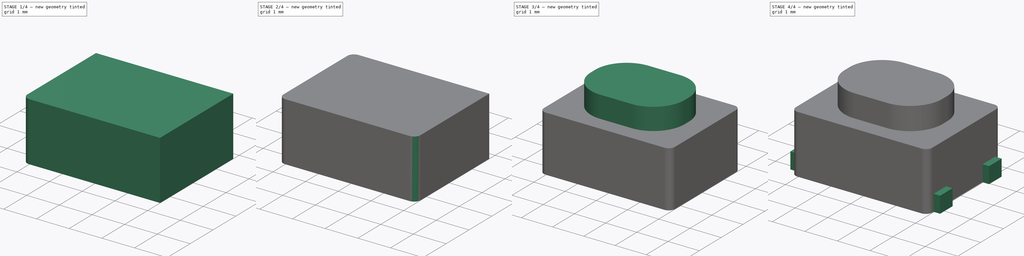
[diagram: build sequence overview — one tinted view per stage of 4, left to right]
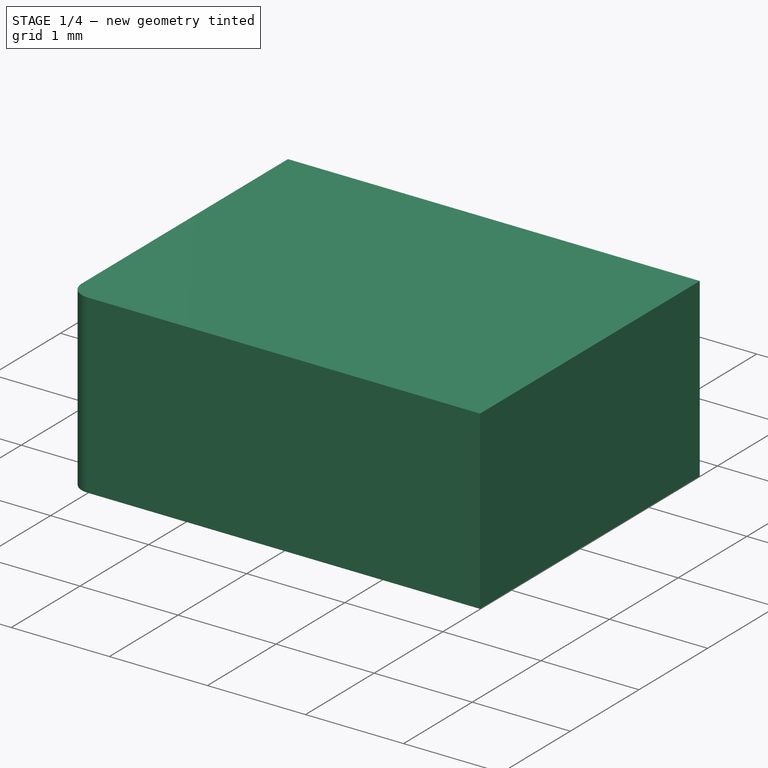
[diagram: stage 1 of 4 — iso view after this stage's code; geometry added in this stage tinted green]
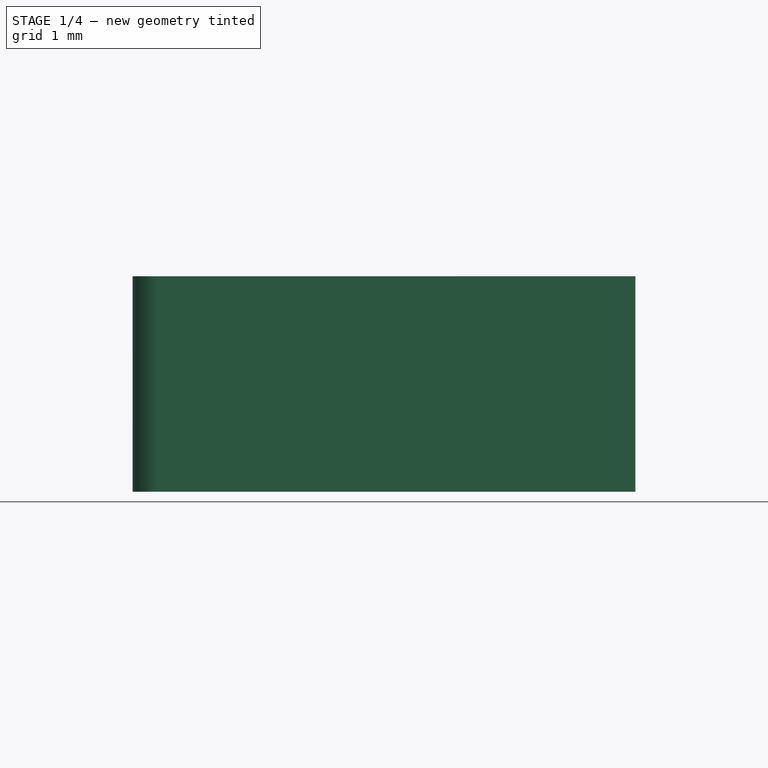
[diagram: stage 1 of 4 — front view after this stage's code; geometry added in this stage tinted green]
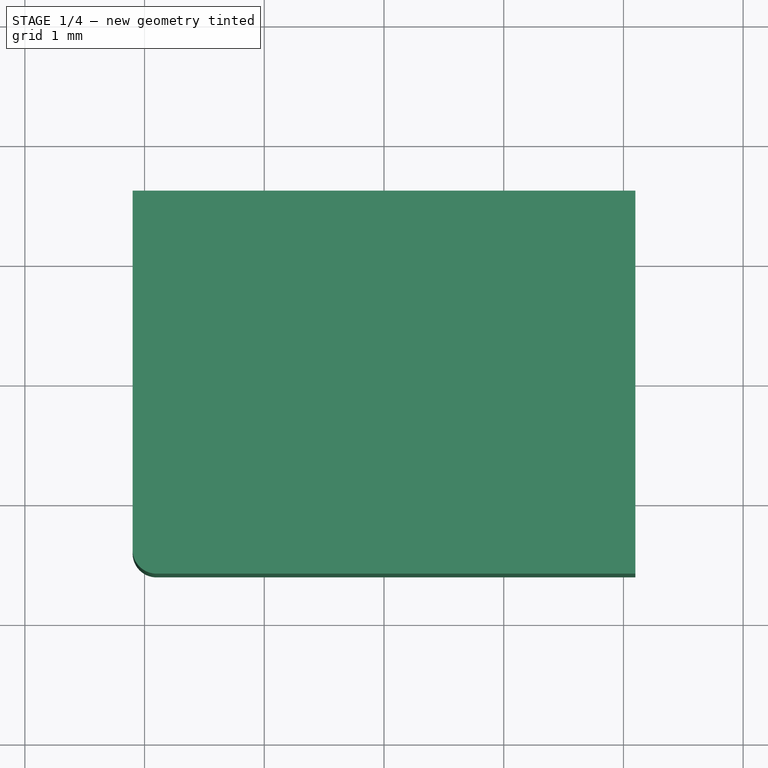
[diagram: stage 1 of 4 — top view after this stage's code; geometry added in this stage tinted green]
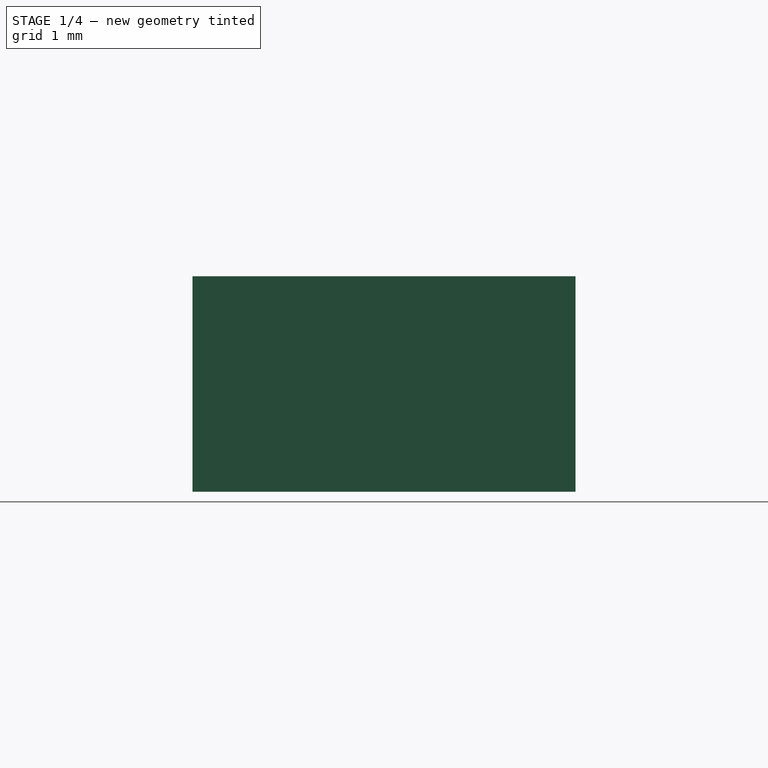
[diagram: stage 1 of 4 — right view after this stage's code; geometry added in this stage tinted green]
FCSTD DOCUMENT  (FreeCAD 0.17R13541 (Git))
Label: Empreinte_Switch
License: All rights reserved
LicenseURL: http://en.wikipedia.org/wiki/All_rights_reserved
objects: PartDesign::Fillet×5, Sketcher::SketchObject×3, PartDesign::Pad×3, PartDesign::Mirrored×2, PartDesign::MultiTransform×1, PartDesign::Body×1
note: 18 computed .brp shape members not serialized (recipe doc carries the construction recipe); baked Part::Feature solids carry a one-line shape summary decoded from their .brp

FEATURE [Sketcher::SketchObject] Sketch
  MapMode = 5
  Support = -> [XY_Plane]
  sketch-geometry (4):
    g0: LineSegment StartX=-2.1 StartY=1.6 StartZ=0 EndX=2.1 EndY=1.6 EndZ=0
    g1: LineSegment StartX=2.1 StartY=1.6 StartZ=0 EndX=2.1 EndY=-1.6 EndZ=0
    g2: LineSegment StartX=2.1 StartY=-1.6 StartZ=0 EndX=-2.1 EndY=-1.6 EndZ=0
    g3: LineSegment StartX=-2.1 StartY=-1.6 StartZ=0 EndX=-2.1 EndY=1.6 EndZ=0
  constraints (12):
    c: Coincident(g0,g1)
    c: Coincident(g1,g2)
    c: Coincident(g2,g3)
    c: Coincident(g3,g0)
    c: Horizontal(g0)
    c: Horizontal(g2)
    c: Vertical(g1)
    c: Vertical(g3)
    c: Distance(g0) = 4.2
    c: Distance(g1) = 3.2
    c: Distance(g-1,g1) = 2.1
    c: Distance(g-1,g2) = 1.6
FEATURE [PartDesign::Pad] Pad  label="CorpsBouton"
  Length = 1.8
  Length2 = 100
  Profile = -> Sketch
  Type = 0
FEATURE [PartDesign::Fillet] Fillet
  Base = -> Pad [Edge8]
  BaseFeature = -> Pad
  Radius = 0.2
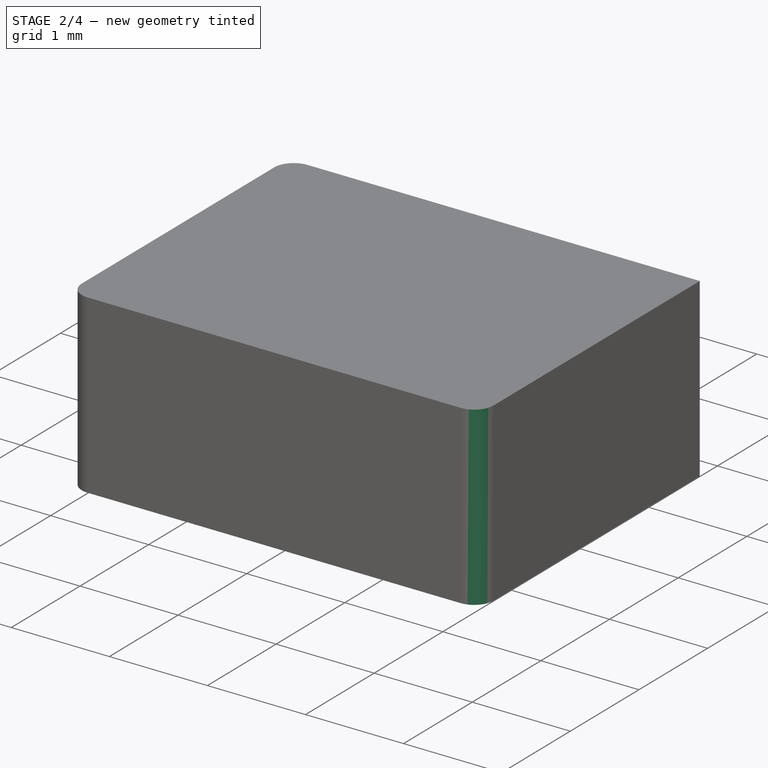
[diagram: stage 2 of 4 — iso view after this stage's code; geometry added in this stage tinted green]
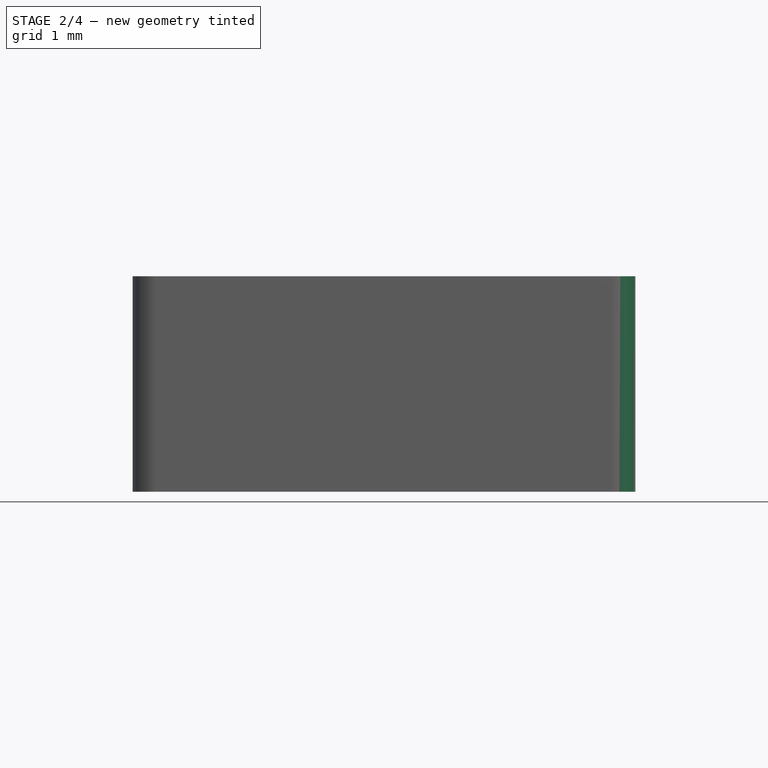
[diagram: stage 2 of 4 — front view after this stage's code; geometry added in this stage tinted green]
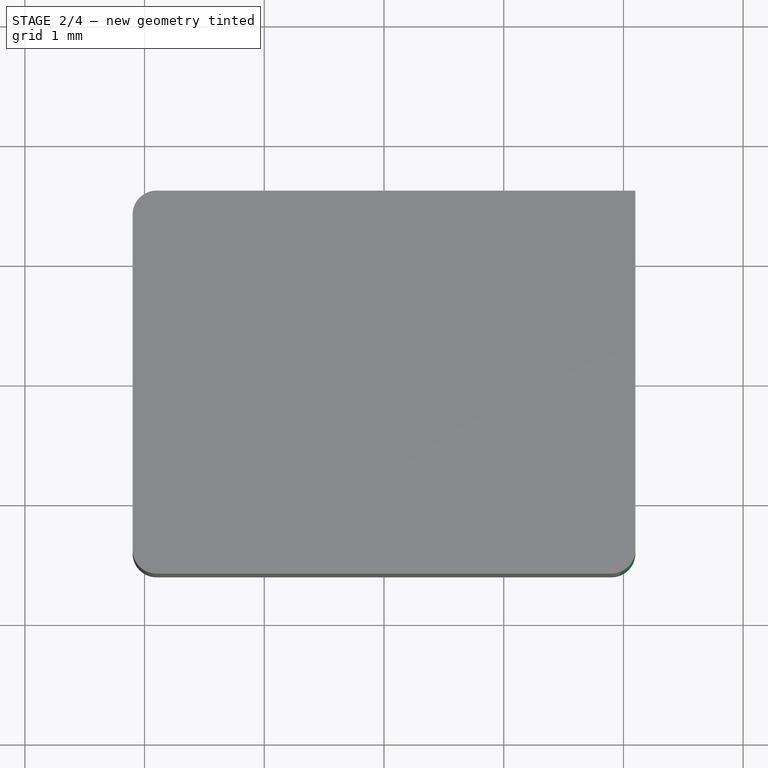
[diagram: stage 2 of 4 — top view after this stage's code; geometry added in this stage tinted green]
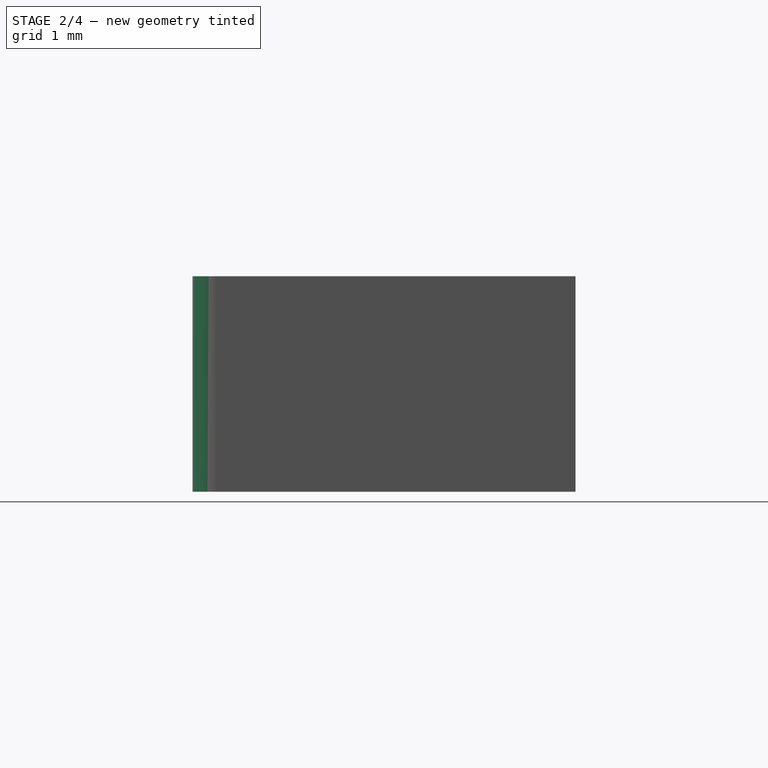
[diagram: stage 2 of 4 — right view after this stage's code; geometry added in this stage tinted green]
FEATURE [PartDesign::Fillet] Fillet001
  Base = -> Fillet [Edge3]
  BaseFeature = -> Fillet
  Radius = 0.2
FEATURE [PartDesign::Fillet] Fillet002
  Base = -> Fillet001 [Edge18]
  BaseFeature = -> Fillet001
  Radius = 0.2
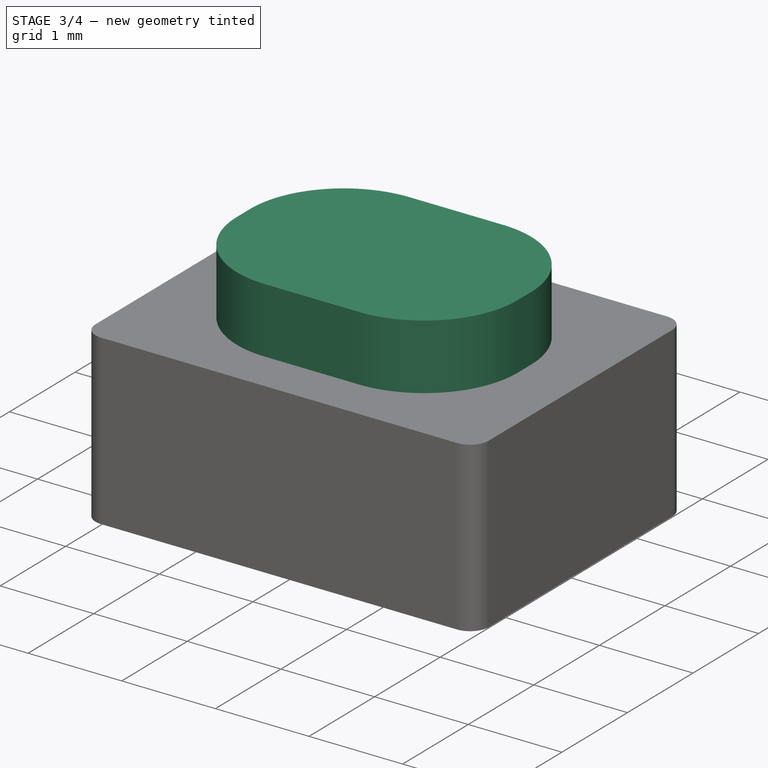
[diagram: stage 3 of 4 — iso view after this stage's code; geometry added in this stage tinted green]
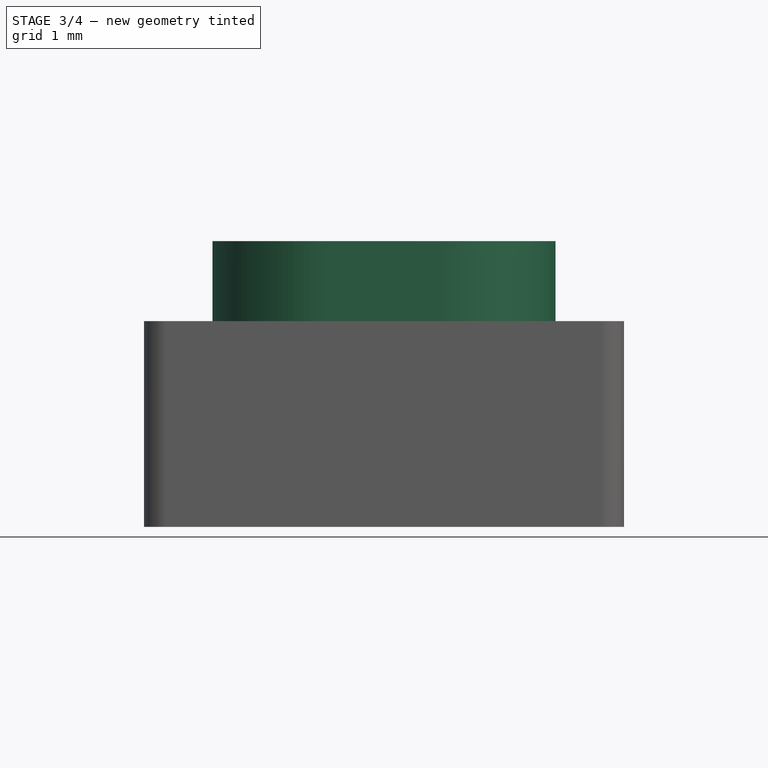
[diagram: stage 3 of 4 — front view after this stage's code; geometry added in this stage tinted green]
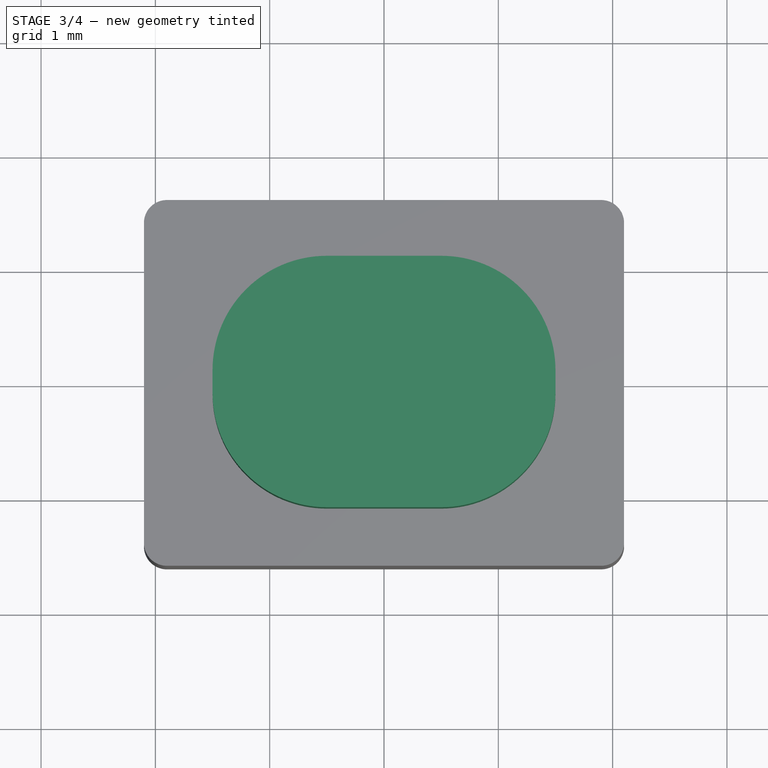
[diagram: stage 3 of 4 — top view after this stage's code; geometry added in this stage tinted green]
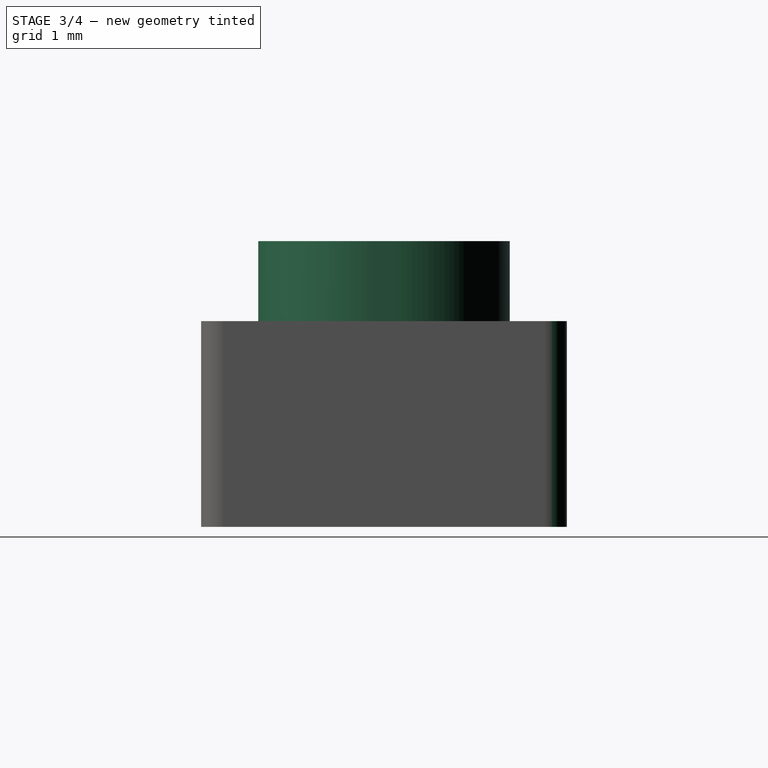
[diagram: stage 3 of 4 — right view after this stage's code; geometry added in this stage tinted green]
FEATURE [PartDesign::Fillet] Fillet003
  Base = -> Fillet002 [Edge15]
  BaseFeature = -> Fillet002
  Radius = 0.2
FEATURE [Sketcher::SketchObject] Sketch001
  MapMode = 5
  Placement = pos=(0,0,1.8) rot=(0,0,1;0rad)
  Support = -> [Pad]
  sketch-geometry (4):
    g0: LineSegment StartX=-1.5 StartY=1.1 StartZ=0 EndX=1.5 EndY=1.1 EndZ=0
    g1: LineSegment StartX=1.5 StartY=1.1 StartZ=0 EndX=1.5 EndY=-1.1 EndZ=0
    g2: LineSegment StartX=1.5 StartY=-1.1 StartZ=0 EndX=-1.5 EndY=-1.1 EndZ=0
    g3: LineSegment StartX=-1.5 StartY=-1.1 StartZ=0 EndX=-1.5 EndY=1.1 EndZ=0
  constraints (12):
    c: Coincident(g0,g1)
    c: Coincident(g1,g2)
    c: Coincident(g2,g3)
    c: Coincident(g3,g0)
    c: Horizontal(g0)
    c: Horizontal(g2)
    c: Vertical(g1)
    c: Vertical(g3)
    c: Distance(g0) = 3
    c: Distance(g-1,g1) = 1.5
    c: Distance(g3) = 2.2
    c: Distance(g-1,g2) = 1.1
FEATURE [PartDesign::Pad] Pad001  label="Bouton"
  BaseFeature = -> Fillet003
  Length = 0.7
  Length2 = 100
  Profile = -> Sketch001
  Type = 0
FEATURE [PartDesign::Fillet] Fillet004
  Base = -> Pad001 [Edge33,Edge35,Edge29,Edge31]
  BaseFeature = -> Pad001
  Radius = 1
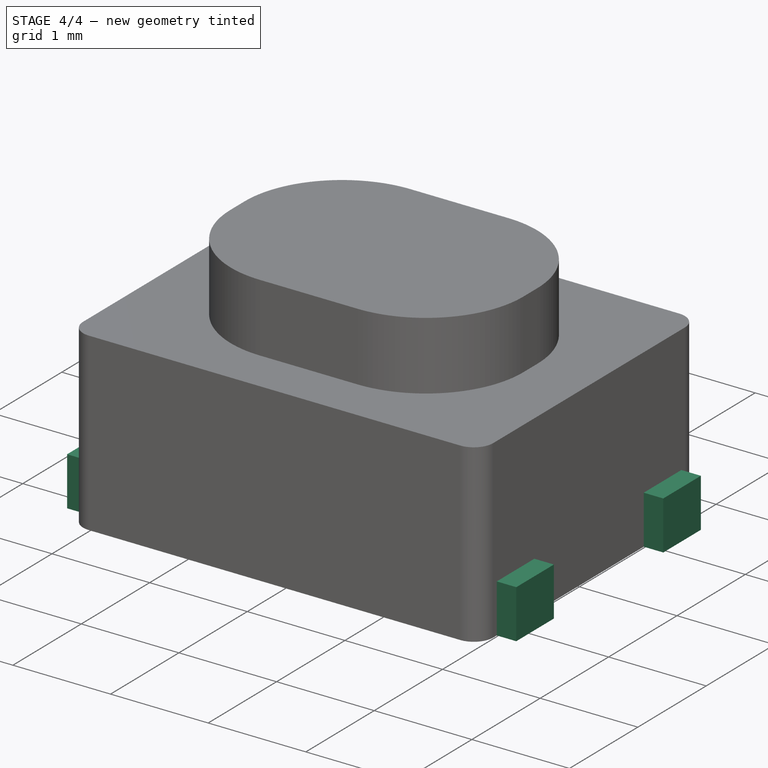
[diagram: stage 4 of 4 — iso view after this stage's code; geometry added in this stage tinted green]
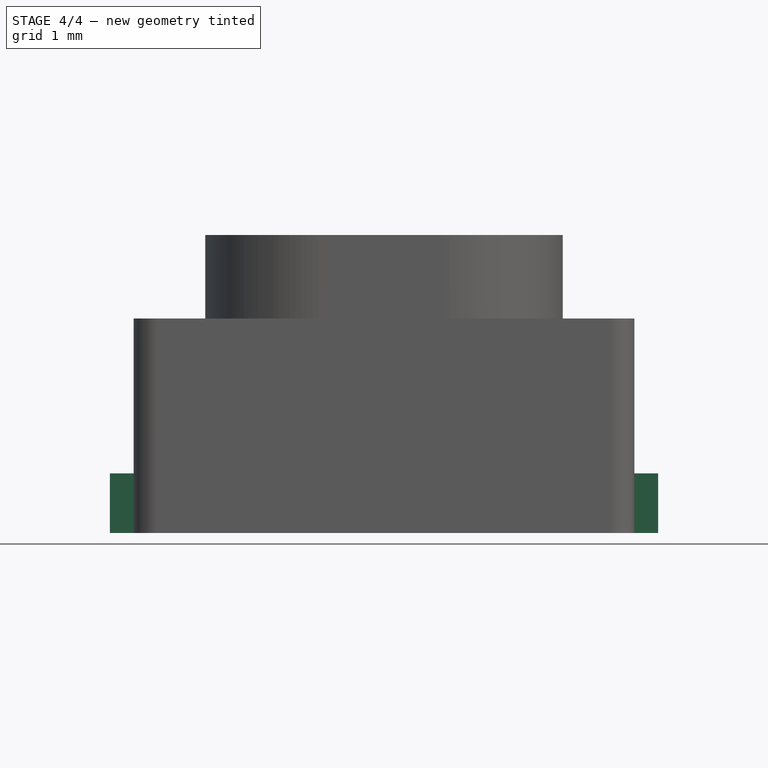
[diagram: stage 4 of 4 — front view after this stage's code; geometry added in this stage tinted green]
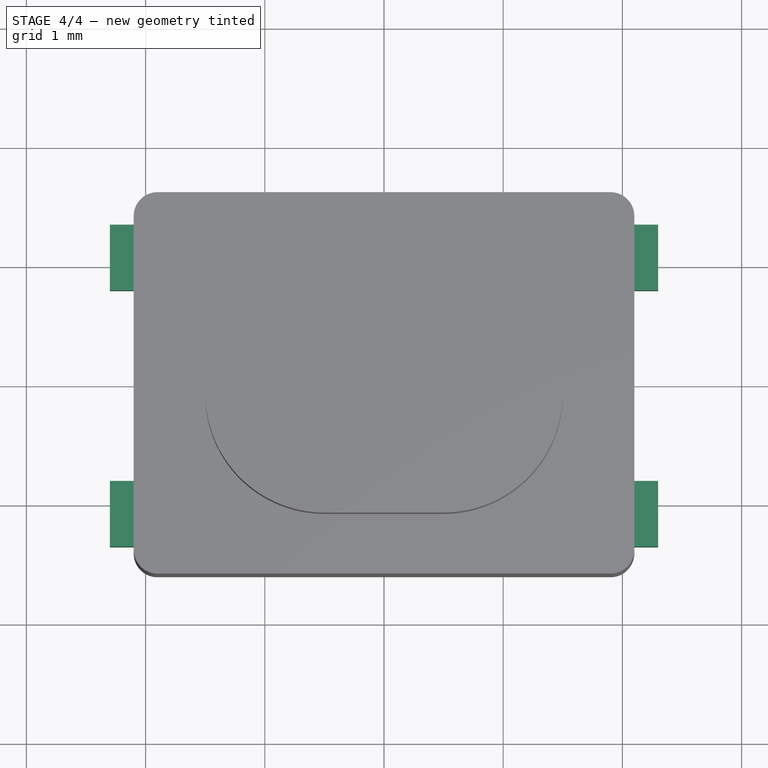
[diagram: stage 4 of 4 — top view after this stage's code; geometry added in this stage tinted green]
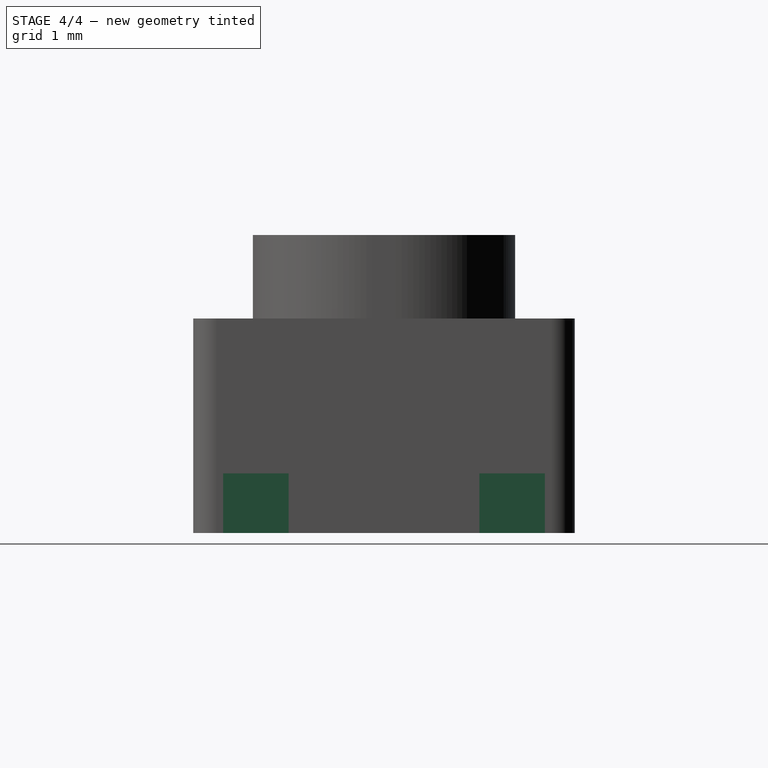
[diagram: stage 4 of 4 — right view after this stage's code; geometry added in this stage tinted green]
FEATURE [Sketcher::SketchObject] Sketch002
  MapMode = 5
  Placement = pos=(-2.1,0,0) rot=(0.57735,-0.57735,-0.57735;2.0944rad)
  Support = -> [Fillet004]
  sketch-geometry (4):
    g0: LineSegment StartX=-0.8 StartY=0 StartZ=0 EndX=-1.35 EndY=0 EndZ=0
    g1: LineSegment StartX=-1.35 StartY=0 StartZ=0 EndX=-1.35 EndY=0.5 EndZ=0
    g2: LineSegment StartX=-1.35 StartY=0.5 StartZ=0 EndX=-0.8 EndY=0.5 EndZ=0
    g3: LineSegment StartX=-0.8 StartY=0.5 StartZ=0 EndX=-0.8 EndY=0 EndZ=0
  constraints (12):
    c: Coincident(g0,g1)
    c: Coincident(g1,g2)
    c: Coincident(g2,g3)
    c: Coincident(g3,g0)
    c: Horizontal(g0)
    c: Horizontal(g2)
    c: Vertical(g1)
    c: Vertical(g3)
    c: PointOnObject(g0,g-1)
    c: Distance(g2) = 0.55
    c: Distance(g3) = 0.5
    c: Distance(g-1,g3) = 0.8
FEATURE [PartDesign::Pad] Pad002  label="PatteComposant"
  BaseFeature = -> Fillet004
  Length = 0.2
  Length2 = 100
  Profile = -> Sketch002
  Type = 0
FEATURE [PartDesign::Mirrored] Mirrored
  MirrorPlane = -> Sketch002 [V_Axis]
FEATURE [PartDesign::Mirrored] Mirrored001
  MirrorPlane = -> YZ_Plane
FEATURE [PartDesign::MultiTransform] MultiTransform
  BaseFeature = -> Pad002
  Originals = -> [Pad002]
  Transformations = -> [Mirrored,Mirrored001]
FEATURE [PartDesign::Body] Body
  Group = -> [Sketch,Pad,Fillet,Fillet001,Fillet002,Fillet003,Sketch001,Pad001,Fillet004,Sketch002,Pad002,MultiTransform,Mirrored,Mirrored001]
  Origin = -> Origin
  Tip = -> MultiTransform
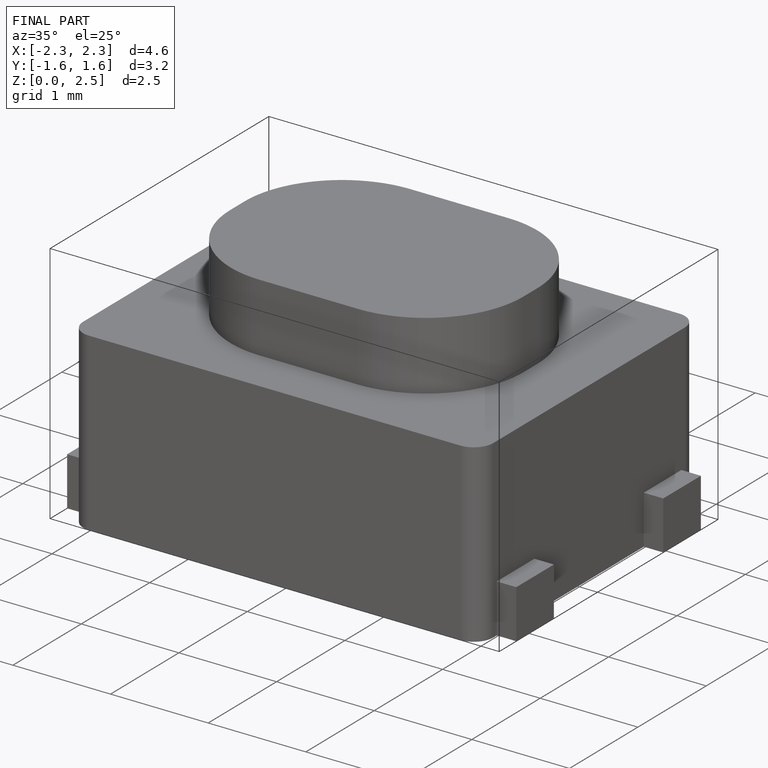
[diagram: finished part — iso view with bounding-box wireframe]
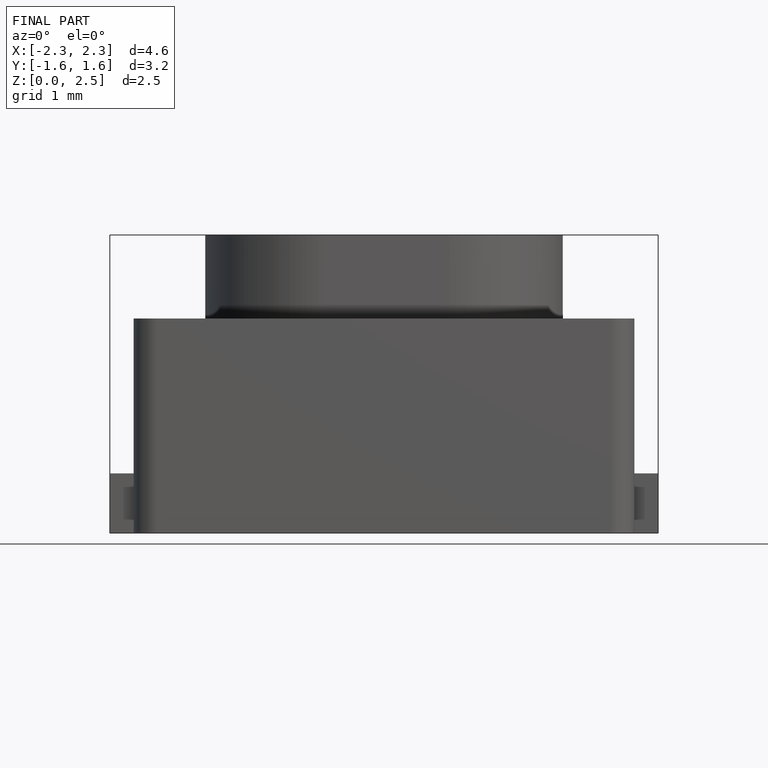
[diagram: finished part — front view with bounding-box wireframe]
